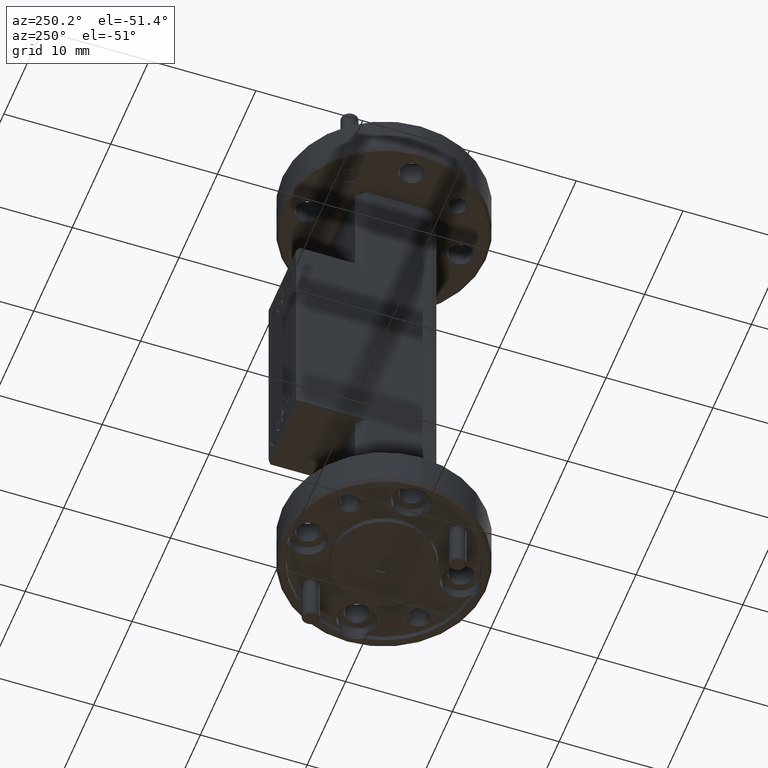
[diagram: clean part render]
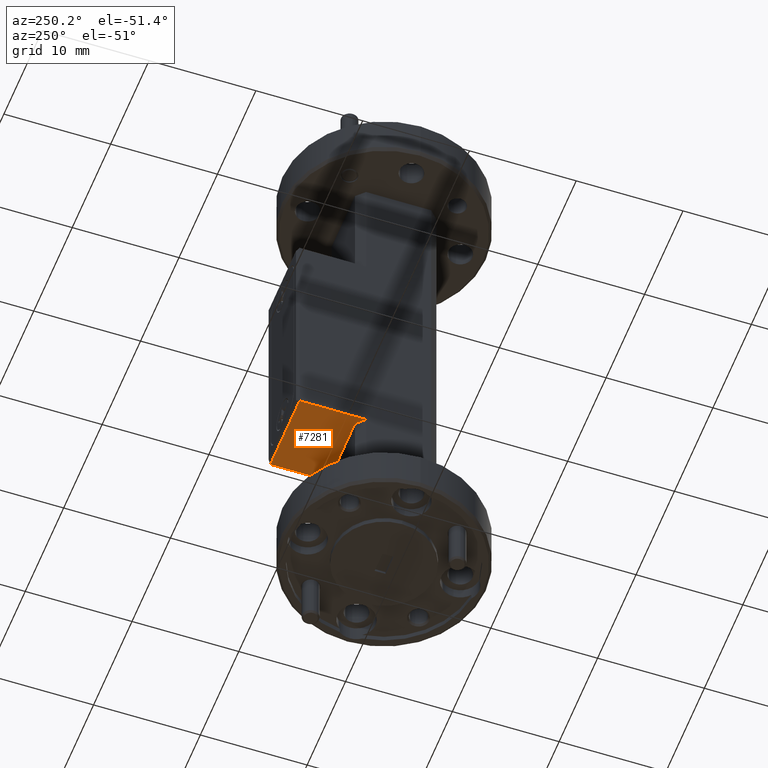
[diagram: same view with one face highlighted and labeled with its STEP entity id]
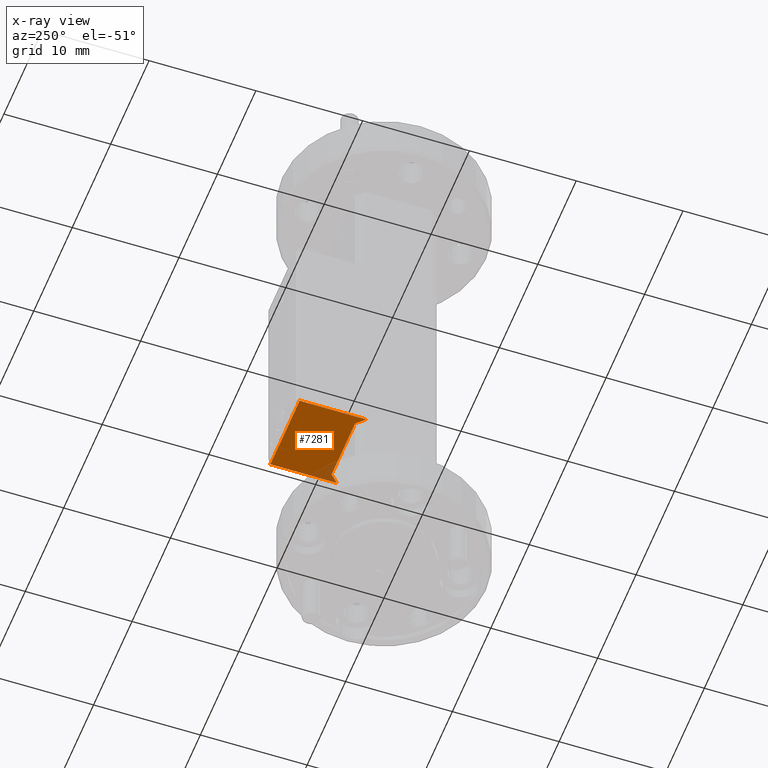
[diagram: x-ray of the same camera — body ghosted, the highlighted face saturated]
A machine part, auxiliary view. The second image highlights one B-rep face of the part: STEP entity #7281.
The next image is the same camera in x-ray: the body ghosted, the highlighted face saturated — about 6% of this face is hidden behind the body in this view.
In plain terms, the highlighted planar face has unit normal (-0, 0, -1).
Its self-contained STEP definition (entity closure, byte-faithful):
#189 = VERTEX_POINT ( 'NONE', #6600 ) ;
#197 = DIRECTION ( 'NONE',  ( -1.517693329813479319E-16, -1.000000000000000000, 0.000000000000000000 ) ) ;
#333 = DIRECTION ( 'NONE',  ( 1.000000000000000000, 0.000000000000000000, 0.000000000000000000 ) ) ;
#436 = CARTESIAN_POINT ( 'NONE',  ( 0.000000000000000000, 0.000000000000000000, -0.4249999999999999889 ) ) ;
#824 = VECTOR ( 'NONE', #333, 39.37007874015748143 ) ;
#867 = CARTESIAN_POINT ( 'NONE',  ( 0.1499999999999998834, 0.3649999999999998801, -0.4249999999999999889 ) ) ;
#1298 = ORIENTED_EDGE ( 'NONE', *, *, #5835, .T. ) ;
#1779 = VECTOR ( 'NONE', #7415, 39.37007874015748143 ) ;
#1986 = ORIENTED_EDGE ( 'NONE', *, *, #2688, .F. ) ;
#1987 = LINE ( 'NONE', #3774, #4881 ) ;
#2688 = EDGE_CURVE ( 'NONE', #5026, #7013, #1987, .T. ) ;
#2775 = ORIENTED_EDGE ( 'NONE', *, *, #2942, .F. ) ;
#2776 = DIRECTION ( 'NONE',  ( -1.517693329813479319E-16, 1.000000000000000000, -0.000000000000000000 ) ) ;
#2854 = EDGE_CURVE ( 'NONE', #7492, #7013, #7377, .T. ) ;
#2942 = EDGE_CURVE ( 'NONE', #6427, #189, #6267, .T. ) ;
#3292 = AXIS2_PLACEMENT_3D ( 'NONE', #436, #4021, #4687 ) ;
#3663 = LINE ( 'NONE', #5530, #4655 ) ;
#3684 = EDGE_CURVE ( 'NONE', #5026, #189, #6163, .T. ) ;
#3774 = CARTESIAN_POINT ( 'NONE',  ( -0.1499999999999998834, 0.3750000000000000555, -0.4249999999999999889 ) ) ;
#4021 = DIRECTION ( 'NONE',  ( -0.000000000000000000, 0.000000000000000000, -1.000000000000000000 ) ) ;
#4041 = ORIENTED_EDGE ( 'NONE', *, *, #2854, .T. ) ;
#4207 = CARTESIAN_POINT ( 'NONE',  ( -0.1200000000000000372, 0.1499999999999999944, -0.4249999999999999889 ) ) ;
#4210 = EDGE_CURVE ( 'NONE', #7492, #4878, #3663, .T. ) ;
#4390 = VECTOR ( 'NONE', #2776, 39.37007874015748143 ) ;
#4655 = VECTOR ( 'NONE', #7295, 39.37007874015748143 ) ;
#4687 = DIRECTION ( 'NONE',  ( -1.000000000000000000, 0.000000000000000000, 0.000000000000000000 ) ) ;
#4830 = LINE ( 'NONE', #6597, #5282 ) ;
#4874 = CARTESIAN_POINT ( 'NONE',  ( -0.1499999999999999112, 0.1200000000000003286, -0.4249999999999999889 ) ) ;
#4878 = VERTEX_POINT ( 'NONE', #6329 ) ;
#4881 = VECTOR ( 'NONE', #197, 39.37007874015748143 ) ;
#5026 = VERTEX_POINT ( 'NONE', #6584 ) ;
#5104 = FACE_OUTER_BOUND ( 'NONE', #6934, .T. ) ;
#5282 = VECTOR ( 'NONE', #6096, 39.37007874015748143 ) ;
#5480 = ORIENTED_EDGE ( 'NONE', *, *, #4210, .F. ) ;
#5530 = CARTESIAN_POINT ( 'NONE',  ( 0.1499999999999999112, 0.1499999999999999944, -0.4249999999999999889 ) ) ;
#5617 = ORIENTED_EDGE ( 'NONE', *, *, #3684, .T. ) ;
#5727 = PLANE ( 'NONE',  #3292 ) ;
#5835 = EDGE_CURVE ( 'NONE', #6427, #4878, #4830, .T. ) ;
#6096 = DIRECTION ( 'NONE',  ( -0.7071067811865443531, 0.7071067811865507924, -0.000000000000000000 ) ) ;
#6163 = LINE ( 'NONE', #867, #824 ) ;
#6267 = LINE ( 'NONE', #6795, #4390 ) ;
#6329 = CARTESIAN_POINT ( 'NONE',  ( 0.1199999999999999817, 0.1499999999999999944, -0.4249999999999999889 ) ) ;
#6427 = VERTEX_POINT ( 'NONE', #6468 ) ;
#6468 = CARTESIAN_POINT ( 'NONE',  ( 0.1499999999999999112, 0.1199999999999997735, -0.4249999999999999889 ) ) ;
#6584 = CARTESIAN_POINT ( 'NONE',  ( -0.1499999999999998834, 0.3649999999999998801, -0.4249999999999999889 ) ) ;
#6597 = CARTESIAN_POINT ( 'NONE',  ( 0.1199999999999999678, 0.1499999999999999944, -0.4249999999999999889 ) ) ;
#6600 = CARTESIAN_POINT ( 'NONE',  ( 0.1499999999999998834, 0.3649999999999998801, -0.4249999999999999889 ) ) ;
#6795 = CARTESIAN_POINT ( 'NONE',  ( 0.1499999999999998834, 0.3750000000000000555, -0.4249999999999999889 ) ) ;
#6934 = EDGE_LOOP ( 'NONE', ( #1986, #5617, #2775, #1298, #5480, #4041 ) ) ;
#7013 = VERTEX_POINT ( 'NONE', #4874 ) ;
#7281 = ADVANCED_FACE ( 'NONE', ( #5104 ), #5727, .T. ) ;
#7295 = DIRECTION ( 'NONE',  ( 1.000000000000000000, -0.000000000000000000, -0.000000000000000000 ) ) ;
#7377 = LINE ( 'NONE', #7456, #1779 ) ;
#7415 = DIRECTION ( 'NONE',  ( -0.7071067811865507924, -0.7071067811865443531, -0.000000000000000000 ) ) ;
#7456 = CARTESIAN_POINT ( 'NONE',  ( -0.1500000000000000500, 0.1200000000000003286, -0.4249999999999999889 ) ) ;
#7492 = VERTEX_POINT ( 'NONE', #4207 ) ;